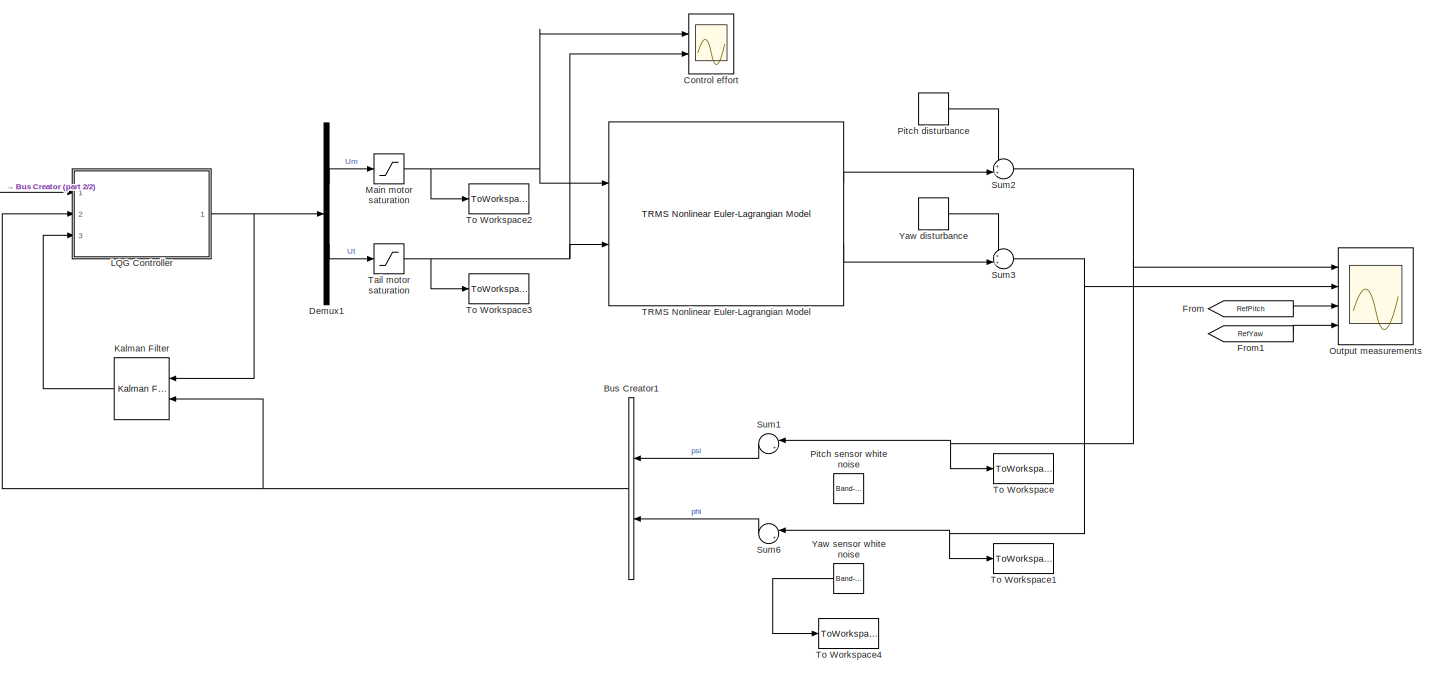
[diagram: root canvas - part 1/2, most of the canvas]
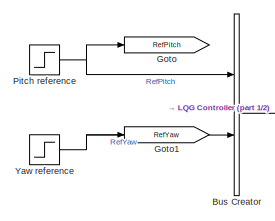
[diagram: root canvas - part 2/2, top left region]
MODEL slx_b23f58361c62
KIND model
CONFIG AbsTol = auto
CONFIG FixedStep = auto
CONFIG MaxStep = auto
CONFIG MinStep = auto
CONFIG RelTol = 1e-3
CONFIG SampleTimeConstraint = Unconstrained
CONFIG Solver = VariableStepAuto
CONFIG SolverMode = Auto
CONFIG SolverName = VariableStepAuto
CONFIG StartTime = 0.0
CONFIG StopTime = 180
BLOCK [BusCreator] Bus Creator
  DisplayOption = bar
  InheritFromInputs = on
  Inputs = 2
  Ports = [2, 1]
BLOCK [BusCreator] Bus Creator1
  DisplayOption = bar
  InheritFromInputs = on
  Inputs = 2
  Ports = [2, 1]
BLOCK [Scope] Control effort
  NumInputPorts = 2
  Ports = [2]
  ScopeSpecificationString = Simulink.scopes.TimeScopeBlockCfg('CurrentConfiguration', extmgr.ConfigurationSet(extmgr.Configuration('Core','General UI',true),extmgr.Configuration('Core','Source UI',true),extmgr.Configuration('Sources','WiredSimulink',true,'DataLoggingVariableName','ScopeData1'),extmgr.Configuration('Visuals','Time Domain',true,'SerializedDisplays',{struct('MinYLimReal','-3.125','MaxYLimReal','3.125','YLabelRe...<+1810ch>
BLOCK [Demux] Demux1
  DisplayOption = bar
  Outputs = 2
  Ports = [1, 2]
BLOCK [From] From
  GotoTag = RefPitch
BLOCK [From] From1
  GotoTag = RefYaw
BLOCK [Goto] Goto
  GotoTag = RefPitch
BLOCK [Goto] Goto1
  GotoTag = RefYaw
BLOCK [Reference] Kalman Filter  REF=ctrlSharedLib/Kalman Filter
  Ports = [2, 1]
  SourceBlock = ctrlSharedLib/Kalman Filter
  SourceType = ctrlKalmanFilter
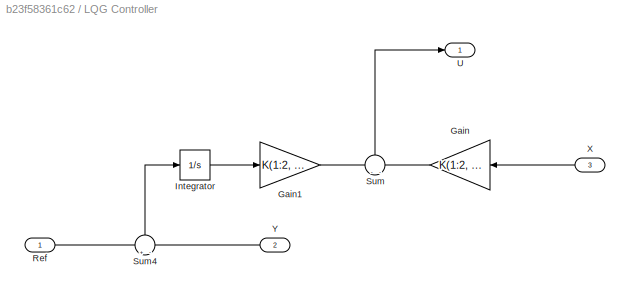
BLOCK [SubSystem] LQG Controller
  Ports = [3, 1]
  RequestExecContextInheritance = off
  Variant = off
BLOCK [Gain] LQG Controller/Gain
  Gain = K(1:2, 1:6)
  Multiplication = Matrix(K*u) (u vector)
  OutDataTypeStr = Inherit: Inherit via internal rule
  ParamDataTypeStr = Inherit: Inherit via internal rule
  SaturateOnIntegerOverflow = off
BLOCK [Gain] LQG Controller/Gain1
  Gain = K(1:2, 7:8)
  Multiplication = Matrix(K*u) (u vector)
  OutDataTypeStr = Inherit: Inherit via internal rule
  ParamDataTypeStr = Inherit: Inherit via internal rule
  SaturateOnIntegerOverflow = off
BLOCK [Integrator] LQG Controller/Integrator
  InitialCondition = [0, 0]
  Ports = [1, 1]
BLOCK [Inport] LQG Controller/Ref
  IconDisplay = Port number
BLOCK [Sum] LQG Controller/Sum
  IconShape = round
  InputSameDT = off
  Inputs = -|-
  OutDataTypeStr = Inherit: Inherit via internal rule
  Ports = [2, 1]
  SaturateOnIntegerOverflow = off
BLOCK [Sum] LQG Controller/Sum4
  IconShape = round
  InputSameDT = off
  Inputs = +|-
  OutDataTypeStr = Inherit: Inherit via internal rule
  Ports = [2, 1]
  SaturateOnIntegerOverflow = off
BLOCK [Outport] LQG Controller/U
  IconDisplay = Port number
BLOCK [Inport] LQG Controller/X
  IconDisplay = Port number
  Port = 3
BLOCK [Inport] LQG Controller/Y
  IconDisplay = Port number
  Port = 2
BLOCK [Saturate] Main motor saturation
  InputPortMap = u0
  LowerLimit = -2.5
  Ports = [1, 1]
  UpperLimit = 2.5
BLOCK [Scope] Output measurements
  NumInputPorts = 4
  Ports = [4]
  ScopeSpecificationString = Simulink.scopes.TimeScopeBlockCfg('CurrentConfiguration', extmgr.ConfigurationSet(extmgr.Configuration('Core','General UI',true),extmgr.Configuration('Core','Source UI',true),extmgr.Configuration('Sources','WiredSimulink',true,'DataLoggingVariableName','ScopeData1'),extmgr.Configuration('Visuals','Time Domain',true,'SerializedDisplays',{struct('MinYLimReal','-1.44131','MaxYLimReal','0.2639','YLabe...<+2056ch>
BLOCK [DiscretePulseGenerator] Pitch disturbance
  Amplitude = 0.1
  Period = 100
  PhaseDelay = 80
  Ports = [0, 1]
  PulseType = Time based
  PulseWidth = 0.1
BLOCK [Step] Pitch reference
  After = 0
  SampleTime = 0
  Time = 100
BLOCK [Reference] Pitch sensor white noise  REF=simulink/Sources/Band-Limited
White Noise
  Ports = [0, 1]
  SourceBlock = simulink/Sources/Band-Limited\nWhite Noise
  SourceType = Band-Limited White Noise.
BLOCK [Sum] Sum1
  IconShape = round
  InputSameDT = off
  Inputs = |++
  OutDataTypeStr = Inherit: Inherit via internal rule
  Ports = [2, 1]
  SaturateOnIntegerOverflow = off
BLOCK [Sum] Sum2
  IconShape = round
  InputSameDT = off
  Inputs = ++|
  OutDataTypeStr = Inherit: Inherit via internal rule
  Ports = [2, 1]
  SaturateOnIntegerOverflow = off
BLOCK [Sum] Sum3
  IconShape = round
  InputSameDT = off
  Inputs = ++|
  OutDataTypeStr = Inherit: Inherit via internal rule
  Ports = [2, 1]
  SaturateOnIntegerOverflow = off
BLOCK [Sum] Sum6
  IconShape = round
  InputSameDT = off
  Inputs = |++
  OutDataTypeStr = Inherit: Inherit via internal rule
  Ports = [2, 1]
  SaturateOnIntegerOverflow = off
BLOCK [Reference] TRMS Nonlinear Euler-Lagrangian Model  REF=lib_Lagrangian_Model_Nonlinear/TRMS
Nonlinear Euler-Lagrangian Model
  Ports = [2, 2]
  SourceBlock = lib_Lagrangian_Model_Nonlinear/TRMS\nNonlinear Euler-Lagrangian Model
  SourceType = Physical model
BLOCK [Saturate] Tail motor saturation
  InputPortMap = u0
  LowerLimit = -2.5
  Ports = [1, 1]
  UpperLimit = 2.5
BLOCK [ToWorkspace] To Workspace
  FixptAsFi = on
  MaxDataPoints = inf
  Ports = [1]
  SampleTime = -1
  Save2DSignal = 3-D array (concatenate along third dimension)
  SaveFormat = Timeseries
  VariableName = sim_psi
BLOCK [ToWorkspace] To Workspace1
  FixptAsFi = on
  MaxDataPoints = inf
  Ports = [1]
  SampleTime = -1
  Save2DSignal = 3-D array (concatenate along third dimension)
  SaveFormat = Timeseries
  VariableName = sim_phi
BLOCK [ToWorkspace] To Workspace2
  FixptAsFi = on
  MaxDataPoints = inf
  Ports = [1]
  SampleTime = -1
  Save2DSignal = 3-D array (concatenate along third dimension)
  SaveFormat = Timeseries
  VariableName = sim_um
BLOCK [ToWorkspace] To Workspace3
  FixptAsFi = on
  MaxDataPoints = inf
  Ports = [1]
  SampleTime = -1
  Save2DSignal = 3-D array (concatenate along third dimension)
  SaveFormat = Timeseries
  VariableName = sim_ut
BLOCK [ToWorkspace] To Workspace4
  FixptAsFi = on
  MaxDataPoints = inf
  Ports = [1]
  SampleTime = -1
  Save2DSignal = 3-D array (concatenate along third dimension)
  SaveFormat = Timeseries
  VariableName = sim_noise
BLOCK [DiscretePulseGenerator] Yaw disturbance
  Amplitude = 0.1
  Period = 100
  PhaseDelay = 120
  Ports = [0, 1]
  PulseType = Time based
  PulseWidth = 0.1
BLOCK [Step] Yaw reference
  After = 0
  SampleTime = 0
  Time = 140
BLOCK [Reference] Yaw sensor white noise  REF=simulink/Sources/Band-Limited
White Noise
  Ports = [0, 1]
  SourceBlock = simulink/Sources/Band-Limited\nWhite Noise
  SourceType = Band-Limited White Noise.
NET Bus Creator1:1 -> Kalman Filter:2, LQG Controller:2
LINE Bus Creator:1 -> LQG Controller:1
LINE Demux1:1 -> Main motor saturation:1
LINE Demux1:2 -> Tail motor saturation:1
LINE From1:1 -> Output measurements:4
LINE From:1 -> Output measurements:3
LINE Kalman Filter:1 -> LQG Controller:3
LINE LQG Controller/Gain1:1 -> LQG Controller/Sum:1
LINE LQG Controller/Gain:1 -> LQG Controller/Sum:2
LINE LQG Controller/Integrator:1 -> LQG Controller/Gain1:1
LINE LQG Controller/Ref:1 -> LQG Controller/Sum4:1
LINE LQG Controller/Sum4:1 -> LQG Controller/Integrator:1
LINE LQG Controller/Sum:1 -> LQG Controller/U:1
LINE LQG Controller/X:1 -> LQG Controller/Gain:1
LINE LQG Controller/Y:1 -> LQG Controller/Sum4:2
NET LQG Controller:1 -> Demux1:1, Kalman Filter:1
NET Main motor saturation:1 -> Control effort:1, TRMS Nonlinear Euler-Lagrangian Model:1, To Workspace2:1
LINE Pitch disturbance:1 -> Sum2:1
NET Pitch reference:1 -> Bus Creator:1, Goto:1
LINE Sum1:1 -> Bus Creator1:1
NET Sum2:1 -> Output measurements:1, Sum1:1, To Workspace:1
NET Sum3:1 -> Output measurements:2, Sum6:1, To Workspace1:1
LINE Sum6:1 -> Bus Creator1:2
LINE TRMS Nonlinear Euler-Lagrangian Model:1 -> Sum2:2
LINE TRMS Nonlinear Euler-Lagrangian Model:2 -> Sum3:2
NET Tail motor saturation:1 -> Control effort:2, TRMS Nonlinear Euler-Lagrangian Model:2, To Workspace3:1
LINE Yaw disturbance:1 -> Sum3:1
NET Yaw reference:1 -> Bus Creator:2, Goto1:1
LINE Yaw sensor white noise:1 -> To Workspace4:1
note: NET lines group one-source signal fan-out (src -> all destinations, sorted); 1:1 wires keep LINE
